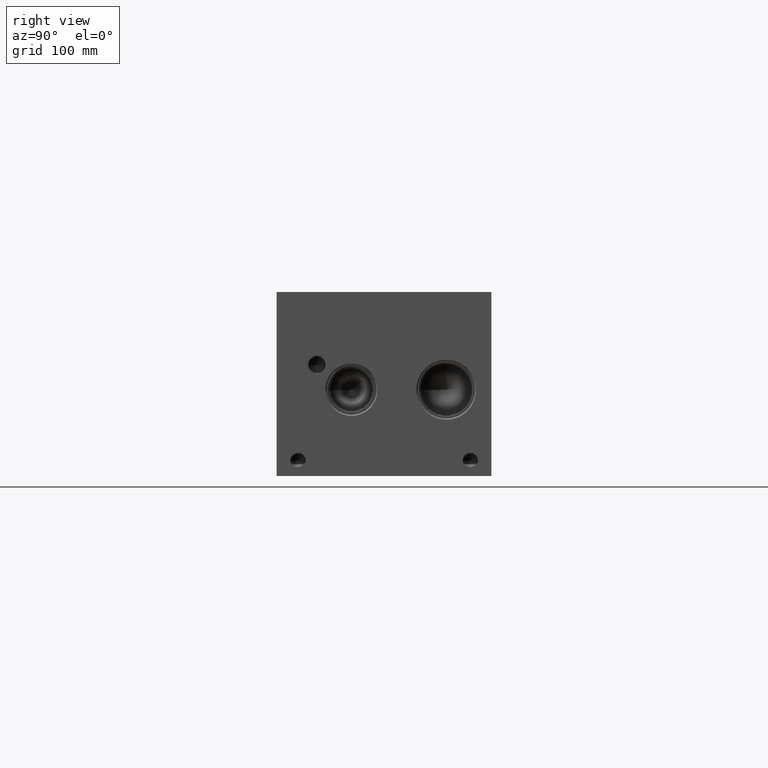
[diagram: clean part render]
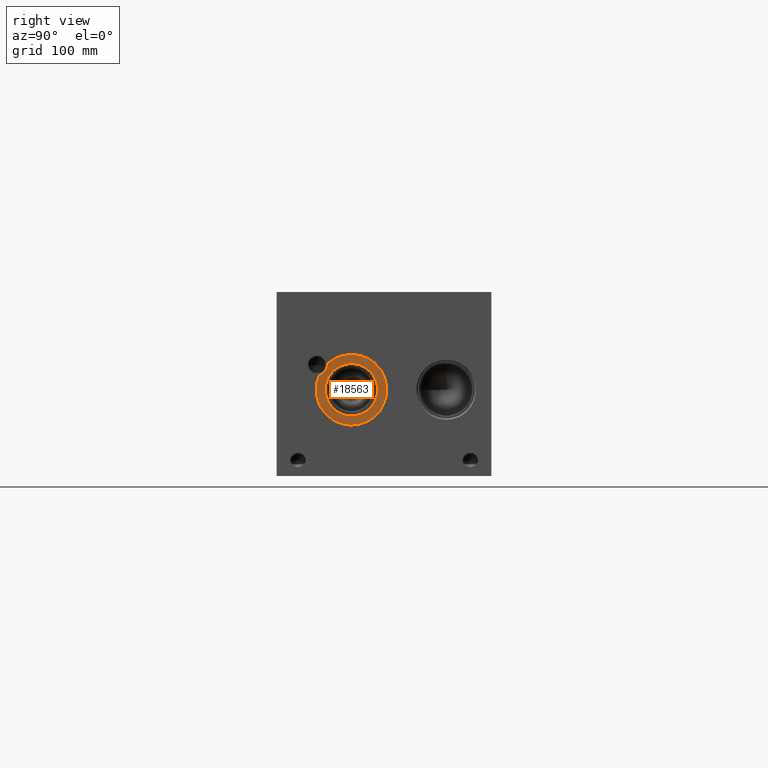
[diagram: same view with one face highlighted and labeled with its STEP entity id]
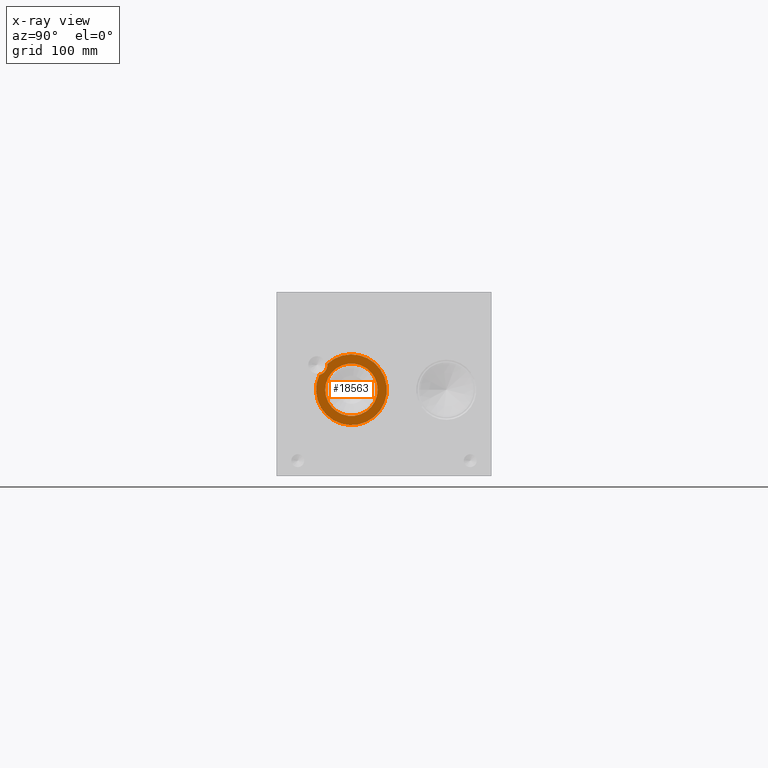
[diagram: x-ray of the same camera — body ghosted, the highlighted face saturated]
A machine part, right view. The second image highlights one B-rep face of the part: STEP entity #18563.
The next image is the same camera in x-ray: the body ghosted, the highlighted face saturated — about 0% of this face is hidden behind the body in this view.
In plain terms, the highlighted planar face has unit normal (1, 0, 0).
Its self-contained STEP definition (entity closure, byte-faithful):
#1031=CIRCLE('',#19871,8.6487);
#1044=CIRCLE('',#19895,29.2862);
#1045=CIRCLE('',#19896,21.7551);
#1656=FACE_BOUND('',#3745,.T.);
#2635=FACE_OUTER_BOUND('',#3744,.T.);
#3744=EDGE_LOOP('',(#16161,#16162));
#3745=EDGE_LOOP('',(#16163));
#8710=VERTEX_POINT('',#32024);
#8711=VERTEX_POINT('',#32026);
#8725=VERTEX_POINT('',#32075);
#11247=EDGE_CURVE('',#8711,#8710,#1031,.T.);
#11270=EDGE_CURVE('',#8710,#8711,#1044,.T.);
#11271=EDGE_CURVE('',#8725,#8725,#1045,.T.);
#16161=ORIENTED_EDGE('',*,*,#11247,.T.);
#16162=ORIENTED_EDGE('',*,*,#11270,.T.);
#16163=ORIENTED_EDGE('',*,*,#11271,.F.);
#17042=PLANE('',#19894);
#18563=ADVANCED_FACE('',(#2635,#1656),#17042,.T.);
#19871=AXIS2_PLACEMENT_3D('',#32027,#24015,#24016);
#19894=AXIS2_PLACEMENT_3D('',#32073,#24071,#24072);
#19895=AXIS2_PLACEMENT_3D('',#32074,#24073,#24074);
#19896=AXIS2_PLACEMENT_3D('',#32076,#24075,#24076);
#24015=DIRECTION('center_axis',(-1.,0.,0.));
#24016=DIRECTION('ref_axis',(0.,1.,0.));
#24071=DIRECTION('center_axis',(1.,0.,0.));
#24072=DIRECTION('ref_axis',(0.,1.,0.));
#24073=DIRECTION('center_axis',(1.,0.,0.));
#24074=DIRECTION('ref_axis',(0.,1.,0.));
#24075=DIRECTION('center_axis',(1.,0.,0.));
#24076=DIRECTION('ref_axis',(0.,1.,0.));
#32024=CARTESIAN_POINT('',(558.0126,35.3167343442511,83.6588126649775));
#32026=CARTESIAN_POINT('',(558.0126,41.9402741828727,92.8323746062911));
#32027=CARTESIAN_POINT('Origin',(558.0126,33.3248,92.075));
#32073=CARTESIAN_POINT('Origin',(558.0126,61.9252,71.4248));
#32074=CARTESIAN_POINT('Origin',(558.0126,61.9252,71.4248));
#32075=CARTESIAN_POINT('',(558.0126,40.1701,71.4248));
#32076=CARTESIAN_POINT('Origin',(558.0126,61.9252,71.4248));